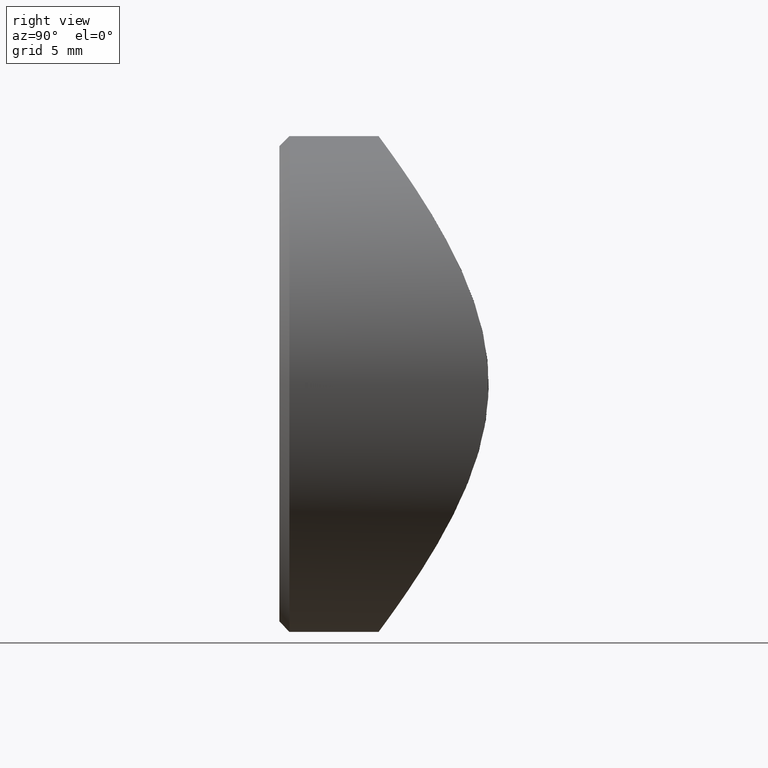
[diagram: clean part render]
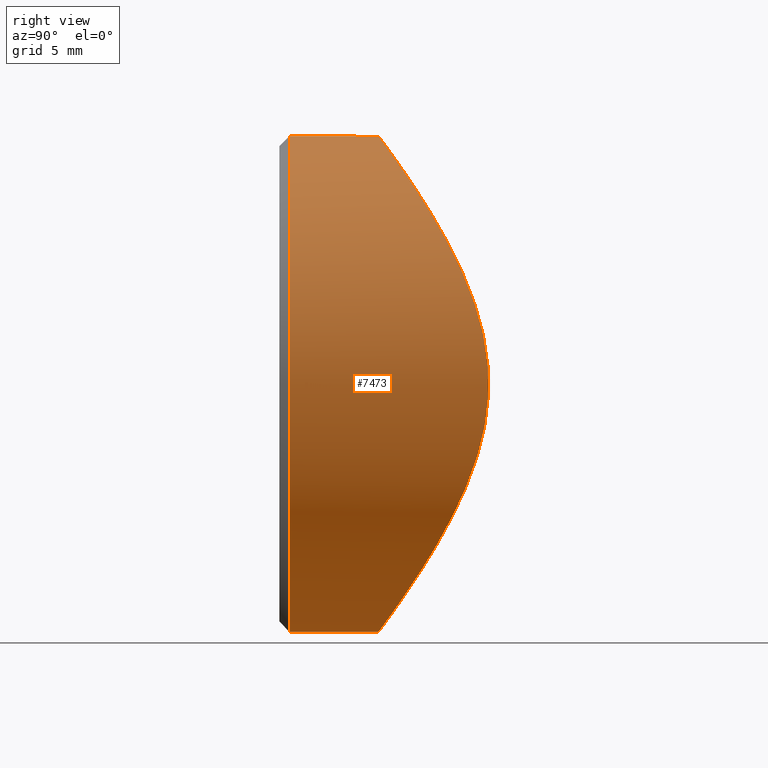
[diagram: same view with one face highlighted and labeled with its STEP entity id]
A machine part, right view. The second image highlights one B-rep face of the part: STEP entity #7473.
In plain terms, the highlighted cylindrical surface (bore or boss wall) has radius 12.5 mm, axis along (-0, -1, -0).
Its self-contained STEP definition (entity closure, byte-faithful):
#38 = AXIS2_PLACEMENT_3D ( 'NONE', #4873, #10586, #1114 ) ;
#98 = CARTESIAN_POINT ( 'NONE',  ( 7.725087596276202007, 6.857375210743176908, -9.859955546532111370 ) ) ;
#142 = CARTESIAN_POINT ( 'NONE',  ( -3.794707603699265519E-16, 5.000000000000002665, -12.50000000000000355 ) ) ;
#190 = CARTESIAN_POINT ( 'NONE',  ( -4.534034423792015822, 5.616592310495697404, 11.65607387355182212 ) ) ;
#508 = CARTESIAN_POINT ( 'NONE',  ( -0.8636332209585083630, 5.016786534777216033, -12.47739737055597686 ) ) ;
#551 = CARTESIAN_POINT ( 'NONE',  ( -3.794707603699265519E-16, 5.000000000000002665, -12.50000000000000355 ) ) ;
#596 = CARTESIAN_POINT ( 'NONE',  ( -9.913336281726111920, 8.221333207590474146, 7.624286059533287307 ) ) ;
#635 = CARTESIAN_POINT ( 'NONE',  ( -12.41251668152268905, 10.45200333766280920, -1.702225936348462865 ) ) ;
#669 = CARTESIAN_POINT ( 'NONE',  ( -8.608763914812016083, 7.361479320957146300, -9.071559621878899193 ) ) ;
#972 = EDGE_LOOP ( 'NONE', ( #6215 ) ) ;
#1064 = CARTESIAN_POINT ( 'NONE',  ( 10.15209503105343281, 8.398827899570685318, -7.303255687103288984 ) ) ;
#1106 = CARTESIAN_POINT ( 'NONE',  ( 5.702415678347255934, 5.989605611720553391, 11.13103517131092524 ) ) ;
#1114 = DIRECTION ( 'NONE',  ( 0.000000000000000000, 0.000000000000000000, 1.000000000000000000 ) ) ;
#1146 = CARTESIAN_POINT ( 'NONE',  ( 6.760625651690383542, 6.411496255424631308, 10.52154059065050262 ) ) ;
#1474 = CARTESIAN_POINT ( 'NONE',  ( -8.316948715918014656, 7.191485976901522470, -9.340102047202101687 ) ) ;
#1479 = EDGE_LOOP ( 'NONE', ( #5373 ) ) ;
#1508 = CARTESIAN_POINT ( 'NONE',  ( -11.65515748268190599, 9.679308167460490608, 4.535070984888439405 ) ) ;
#1543 = CARTESIAN_POINT ( 'NONE',  ( -4.561892468143614821, 5.624459840649056908, -11.64511404937758599 ) ) ;
#1566 = AXIS2_PLACEMENT_3D ( 'NONE', #11129, #9256, #4627 ) ;
#1575 = CARTESIAN_POINT ( 'NONE',  ( -1.710710483963290507, 5.081684415357668350, -12.38970448086469744 ) ) ;
#1613 = CARTESIAN_POINT ( 'NONE',  ( -7.704468760255166693, 6.860509333842019331, -9.851411234823737928 ) ) ;
#1936 = CARTESIAN_POINT ( 'NONE',  ( 1.709900785693727165, 5.066159786283003008, -12.41121583812317297 ) ) ;
#2022 = CARTESIAN_POINT ( 'NONE',  ( 12.49940800475359026, 10.55011945727633638, -0.4431015120750765313 ) ) ;
#2067 = CARTESIAN_POINT ( 'NONE',  ( 5.333944091556106493, 5.861640268224943995, 11.31230488373124388 ) ) ;
#2112 = CARTESIAN_POINT ( 'NONE',  ( 4.201071322070166758, 5.512989083530328571, 11.80160180501883360 ) ) ;
#2299 = FACE_OUTER_BOUND ( 'NONE', #972, .T. ) ;
#2411 = EDGE_CURVE ( 'NONE', #7715, #7715, #5969, .T. ) ;
#2427 = CARTESIAN_POINT ( 'NONE',  ( -12.49404709278494785, 10.54417970573474506, 0.4419573438402809029 ) ) ;
#2463 = CARTESIAN_POINT ( 'NONE',  ( -11.19164272665530646, 9.246236715532639039, -5.625340578761621302 ) ) ;
#2567 = CARTESIAN_POINT ( 'NONE',  ( -10.14981759695986874, 8.397065247982311575, 7.306580317500587896 ) ) ;
#2834 = CARTESIAN_POINT ( 'NONE',  ( 12.32849113551055886, 10.36322505742986877, 2.105957164664732151 ) ) ;
#2839 = CARTESIAN_POINT ( 'NONE',  ( 0.000000000000000000, 0.4999999999999952260, 12.50000000000000000 ) ) ;
#2875 = CARTESIAN_POINT ( 'NONE',  ( 9.918910832310835701, 8.225381941180074818, -7.617067061706761955 ) ) ;
#2959 = CARTESIAN_POINT ( 'NONE',  ( 12.05501788564150090, 10.07591272140713201, 3.331002727478517222 ) ) ;
#3002 = CARTESIAN_POINT ( 'NONE',  ( 0.8862944527719824883, 5.001706842052980662, 12.49769917332690028 ) ) ;
#3042 = CARTESIAN_POINT ( 'NONE',  ( -3.338531084585762532, 5.328949253520355533, 12.05321773628484294 ) ) ;
#3160 = CYLINDRICAL_SURFACE ( 'NONE', #1566, 12.50000000000000000 ) ;
#3360 = CARTESIAN_POINT ( 'NONE',  ( -12.15502326599365190, 10.17980253063021223, -2.947023121730977469 ) ) ;
#3504 = CARTESIAN_POINT ( 'NONE',  ( -12.38807136735368530, 10.42798203802804125, 1.722643117104000643 ) ) ;
#3702 = CARTESIAN_POINT ( 'NONE',  ( 0.000000000000000000, 5.000000000000000888, -12.50000000000000000 ) ) ;
#3740 = CARTESIAN_POINT ( 'NONE',  ( 3.359470735374358252, 5.333152633049887292, -12.04746228219888593 ) ) ;
#3780 = CARTESIAN_POINT ( 'NONE',  ( 12.15913050264130746, 10.18409936269996940, 2.929555371981024781 ) ) ;
#3825 = CARTESIAN_POINT ( 'NONE',  ( 12.38761164070138321, 10.42747986706152297, -1.726914567639154630 ) ) ;
#3864 = CARTESIAN_POINT ( 'NONE',  ( 2.949310682857493315, 5.254859001800931573, -12.15440563398029283 ) ) ;
#3908 = CARTESIAN_POINT ( 'NONE',  ( 12.39374998103031622, 10.43415610254688985, 1.681148217496150732 ) ) ;
#3947 = CARTESIAN_POINT ( 'NONE',  ( 8.346359077379165825, 7.197970252377378308, 9.338307349549639369 ) ) ;
#4310 = CARTESIAN_POINT ( 'NONE',  ( -0.4325281405136495172, 5.000000000000002665, -12.50000000000000355 ) ) ;
#4387 = CARTESIAN_POINT ( 'NONE',  ( -6.386089779192299254, 6.239893742329651438, 10.77567517134109742 ) ) ;
#4425 = CARTESIAN_POINT ( 'NONE',  ( -11.79600166072150280, 9.816397478828196910, 4.156171737159097823 ) ) ;
#4467 = CARTESIAN_POINT ( 'NONE',  ( -5.676436023841302969, 5.964958371272968130, 11.16755028081584200 ) ) ;
#4627 = DIRECTION ( 'NONE',  ( 0.000000000000000000, 0.000000000000000000, -1.000000000000000000 ) ) ;
#4694 = CARTESIAN_POINT ( 'NONE',  ( 10.80637188597060927, 8.909710813056152645, -6.331084841090776294 ) ) ;
#4731 = CARTESIAN_POINT ( 'NONE',  ( 10.16616520457220574, 8.409465877212438656, 7.283675092912237581 ) ) ;
#4862 = CARTESIAN_POINT ( 'NONE',  ( 6.730548925864030529, 6.398283905438035823, -10.54092674265327467 ) ) ;
#4873 = CARTESIAN_POINT ( 'NONE',  ( 0.000000000000000000, 0.4999999999999952260, 0.000000000000000000 ) ) ;
#4904 = CARTESIAN_POINT ( 'NONE',  ( -4.138822897866138106, 5.511057176469463137, 11.80237233021971122 ) ) ;
#5292 = CARTESIAN_POINT ( 'NONE',  ( -2.954705641635357871, 5.255823458859257613, -12.15308928381742959 ) ) ;
#5333 = CARTESIAN_POINT ( 'NONE',  ( -7.382638748798954431, 6.698996399061609708, 10.09497273999650702 ) ) ;
#5372 = CARTESIAN_POINT ( 'NONE',  ( -9.415611300531685046, 7.872837962933485478, 8.231053273395870562 ) ) ;
#5373 = ORIENTED_EDGE ( 'NONE', *, *, #2411, .T. ) ;
#5416 = CARTESIAN_POINT ( 'NONE',  ( -2.128847978376533501, 5.129803027708679686, -12.32460428793201501 ) ) ;
#5494 = VERTEX_POINT ( 'NONE', #2839 ) ;
#5638 = CARTESIAN_POINT ( 'NONE',  ( 5.307264070331348726, 5.852767815495488080, -11.32483359410820967 ) ) ;
#5727 = CARTESIAN_POINT ( 'NONE',  ( 9.173058474145415531, 7.712008819377808244, 8.500524791488439647 ) ) ;
#5765 = CARTESIAN_POINT ( 'NONE',  ( 6.384361518290241122, 6.251688766562865318, -10.75428117890123225 ) ) ;
#5812 = CARTESIAN_POINT ( 'NONE',  ( 11.18287452319160380, 9.238413557585971603, -5.642728639872041541 ) ) ;
#5855 = CARTESIAN_POINT ( 'NONE',  ( -0.3935469930541703465, 4.999195247331875258, 12.50108480833786651 ) ) ;
#5969 = B_SPLINE_CURVE_WITH_KNOTS ( 'NONE', 3,
 ( #142, #9520, #1936, #3864, #3740, #11393, #11268, #5638, #10462, #5765, #4862, #98, #8511, #9475, #10327, #2875, #1064, #4694, #5812, #7660, #12199, #11436, #8471, #7539, #3825, #6680, #2022, #10375, #10416, #3908, #2834, #3780, #2959, #9560, #10499, #6758, #9437, #4731, #11308, #11346, #5727, #3947, #9608, #1146, #6799, #1106, #2067, #2112, #7707, #8653, #3002, #5855, #11481, #7748, #8694, #10546, #3042, #4904, #190, #4467, #4387, #5333, #8207, #10000, #8063, #10075, #5372, #596, #2567, #7271, #9179, #1508, #4425, #7111, #9025, #11944, #3504, #8138, #7230, #2427, #11908, #6289, #635, #3360, #10037, #9956, #11835, #2463, #6324, #11042, #11873, #669, #1474, #1613, #11007, #10932, #9142, #1543, #8174, #10112, #5292, #5416, #1575, #508, #4310, #551 ),
 .UNSPECIFIED., .T., .F.,
 ( 4, 2, 2, 2, 2, 2, 2, 2, 2, 2, 2, 2, 2, 2, 2, 2, 2, 2, 2, 2, 2, 2, 2, 2, 2, 2, 2, 2, 2, 2, 2, 2, 2, 2, 2, 2, 2, 2, 2, 2, 2, 2, 2, 2, 2, 2, 2, 2, 2, 2, 2, 2, 4 ),
 ( 0.000000000000000000, 0.002552980576159042617, 0.003829470864238562842, 0.005105961152318081765, 0.006382451440397601122, 0.007658941728477119612, 0.01021192230463616006, 0.01148841259271568029, 0.01276490288079519878, 0.01531788345695423922, 0.01659437374503376292, 0.01787086403311328314, 0.01914735432119280337, 0.02042384460927232706, 0.02170033489735184382, 0.02297682518543136751, 0.02425331547351088773, 0.02552980576159040796, 0.02808278633774945188, 0.02935927662582896863, 0.03063576691390848192, 0.03318874749006752584, 0.03446523777814704953, 0.03574172806622656628, 0.03829470864238560673, 0.04084768921854465412, 0.04212417950662417088, 0.04340066979470368763, 0.04467716008278321133, 0.04595365037086273502, 0.04850663094702177547, 0.04978312123510129222, 0.05105961152318081592, 0.05233610181126033961, 0.05361259209933985637, 0.05616557267549890375, 0.05744206296357842051, 0.05871855325165794420, 0.05999504353973746096, 0.06063328868377722281, 0.06127153382781698465, 0.06382451440397604592, 0.06510100469205556961, 0.06637749498013509331, 0.06893047555629414069, 0.07148345613245318808, 0.07275994642053269790, 0.07403643670861222159, 0.07658941728477126898, 0.07786590757285079267, 0.07914239786093030249, 0.08041888814900982618, 0.08169537843708934988 ),
 .UNSPECIFIED. ) ;
#6215 = ORIENTED_EDGE ( 'NONE', *, *, #7156, .T. ) ;
#6289 = CARTESIAN_POINT ( 'NONE',  ( -12.50054828447288813, 10.55138091347944140, -0.8562946877523991418 ) ) ;
#6324 = CARTESIAN_POINT ( 'NONE',  ( -10.80643849006685642, 8.909656422256221120, -6.331389163156086575 ) ) ;
#6680 = CARTESIAN_POINT ( 'NONE',  ( 12.47704102393364067, 10.52523352844297122, -0.8709783991820276849 ) ) ;
#6758 = CARTESIAN_POINT ( 'NONE',  ( 11.19541113013799816, 9.249535606679128108, 5.618437667368847421 ) ) ;
#6799 = CARTESIAN_POINT ( 'NONE',  ( 6.418289861271227359, 6.265545887740251452, 10.73419972845318426 ) ) ;
#7111 = CARTESIAN_POINT ( 'NONE',  ( -12.04386476068136780, 10.06447640349762551, 3.371163050776679881 ) ) ;
#7156 = EDGE_CURVE ( 'NONE', #5494, #5494, #10397, .T. ) ;
#7230 = CARTESIAN_POINT ( 'NONE',  ( -12.47135625874014764, 10.51915456152846673, 0.8728184909163256844 ) ) ;
#7271 = CARTESIAN_POINT ( 'NONE',  ( -10.80916643883108641, 8.911861661272373780, 6.327050944019698697 ) ) ;
#7473 = ADVANCED_FACE ( 'NONE', ( #2299, #9514 ), #3160, .T. ) ;
#7539 = CARTESIAN_POINT ( 'NONE',  ( 12.32171943010986048, 10.35595190368455754, -2.144704867840639739 ) ) ;
#7660 = CARTESIAN_POINT ( 'NONE',  ( 11.65613356539895129, 9.680216760165276213, -4.532804604408831040 ) ) ;
#7707 = CARTESIAN_POINT ( 'NONE',  ( 3.406329399486695220, 5.326159724026612530, 12.05732280935469447 ) ) ;
#7715 = VERTEX_POINT ( 'NONE', #3702 ) ;
#7748 = CARTESIAN_POINT ( 'NONE',  ( -1.681670327208296900, 5.078608372228565315, 12.39386628287589787 ) ) ;
#8063 = CARTESIAN_POINT ( 'NONE',  ( -8.601666625683400014, 7.357270806964956833, 9.078266378976396211 ) ) ;
#8138 = CARTESIAN_POINT ( 'NONE',  ( -12.45451491416239342, 10.50061081447679712, 1.086513290666520914 ) ) ;
#8174 = CARTESIAN_POINT ( 'NONE',  ( -4.167544218299445546, 5.518293250734573441, -11.79236184805642118 ) ) ;
#8207 = CARTESIAN_POINT ( 'NONE',  ( -7.703289577120546738, 6.859953521673319621, 9.852230508724872493 ) ) ;
#8471 = CARTESIAN_POINT ( 'NONE',  ( 12.15102610715198495, 10.17564880183612175, -2.962615943350923597 ) ) ;
#8511 = CARTESIAN_POINT ( 'NONE',  ( 8.328807637774536587, 7.187957922519476739, -9.353951093026466879 ) ) ;
#8653 = CARTESIAN_POINT ( 'NONE',  ( 1.731586466040706984, 5.067807480715986301, 12.40901775393269801 ) ) ;
#8694 = CARTESIAN_POINT ( 'NONE',  ( -2.103050648774579923, 5.126508452823334672, 12.32907154300034946 ) ) ;
#9025 = CARTESIAN_POINT ( 'NONE',  ( -12.15099301147320965, 10.17560719874020236, 2.963116243893664681 ) ) ;
#9142 = CARTESIAN_POINT ( 'NONE',  ( -5.696601836064247415, 5.972427989903097867, -11.15692179667027339 ) ) ;
#9179 = CARTESIAN_POINT ( 'NONE',  ( -11.18515591272512921, 9.240538087488818775, 5.637423732912249186 ) ) ;
#9256 = DIRECTION ( 'NONE',  ( -0.000000000000000000, -1.000000000000000000, -0.000000000000000000 ) ) ;
#9437 = CARTESIAN_POINT ( 'NONE',  ( 10.81909761105386458, 8.920378320601397348, 6.309396023832007039 ) ) ;
#9475 = CARTESIAN_POINT ( 'NONE',  ( 9.156916746094442061, 7.701541449956099683, -8.517906734318049899 ) ) ;
#9514 = FACE_OUTER_BOUND ( 'NONE', #1479, .T. ) ;
#9520 = CARTESIAN_POINT ( 'NONE',  ( 0.8650562810272981462, 5.000000000000000888, -12.50000000000000000 ) ) ;
#9560 = CARTESIAN_POINT ( 'NONE',  ( 11.81007909461817817, 9.830240466385300024, 4.115952766063815105 ) ) ;
#9608 = CARTESIAN_POINT ( 'NONE',  ( 7.745514045367439593, 6.868233065914329138, 9.843399544111576915 ) ) ;
#9956 = CARTESIAN_POINT ( 'NONE',  ( -11.80363150583910503, 9.823901913046761081, -4.134327354336587490 ) ) ;
#10000 = CARTESIAN_POINT ( 'NONE',  ( -8.312020225818031349, 7.188742090224305770, 9.344379919053761085 ) ) ;
#10037 = CARTESIAN_POINT ( 'NONE',  ( -12.04936401744532937, 10.07011975027965001, -3.351299176968092652 ) ) ;
#10075 = CARTESIAN_POINT ( 'NONE',  ( -9.153464094591219791, 7.699312268618356825, 8.521601038307187181 ) ) ;
#10112 = CARTESIAN_POINT ( 'NONE',  ( -3.362424914157018385, 5.333730177423861463, -12.04667263038362179 ) ) ;
#10327 = CARTESIAN_POINT ( 'NONE',  ( 9.420742977788826522, 7.876288571231414792, -8.225211515110952831 ) ) ;
#10375 = CARTESIAN_POINT ( 'NONE',  ( 12.50056880043485386, 10.55140360864599991, 0.4090465559027094966 ) ) ;
#10397 = CIRCLE ( 'NONE', #38, 12.50000000000000000 ) ;
#10416 = CARTESIAN_POINT ( 'NONE',  ( 12.47942030275058123, 10.52787125180945260, 0.8338865802829181773 ) ) ;
#10462 = CARTESIAN_POINT ( 'NONE',  ( 5.673483084413013522, 5.979304519893406500, -11.14568191552109155 ) ) ;
#10499 = CARTESIAN_POINT ( 'NONE',  ( 11.66840168895986452, 9.691977531270971724, 4.501324257794622419 ) ) ;
#10546 = CARTESIAN_POINT ( 'NONE',  ( -2.931482682952398555, 5.251674757995892229, 12.15875143356761434 ) ) ;
#10586 = DIRECTION ( 'NONE',  ( -0.000000000000000000, 1.000000000000000000, -0.000000000000000000 ) ) ;
#10932 = CARTESIAN_POINT ( 'NONE',  ( -6.400177161983100049, 6.245988225559218954, -10.76676231501228465 ) ) ;
#11007 = CARTESIAN_POINT ( 'NONE',  ( -7.387040474167372750, 6.701225434926187496, -10.09160505797753338 ) ) ;
#11042 = CARTESIAN_POINT ( 'NONE',  ( -9.929920225423078506, 8.225452702332207267, -7.632973594324992561 ) ) ;
#11129 = CARTESIAN_POINT ( 'NONE',  ( 0.000000000000000000, 12.00000000000000000, 0.000000000000000000 ) ) ;
#11268 = CARTESIAN_POINT ( 'NONE',  ( 4.551914136313043535, 5.621673925730649835, -11.64899075208257884 ) ) ;
#11308 = CARTESIAN_POINT ( 'NONE',  ( 9.933601834075018289, 8.236108023750972507, 7.597874980169982528 ) ) ;
#11346 = CARTESIAN_POINT ( 'NONE',  ( 9.437200314901742715, 7.887416057357630628, 8.206302445599357398 ) ) ;
#11393 = CARTESIAN_POINT ( 'NONE',  ( 4.162791216406916739, 5.517104976350059253, -11.79400527180851554 ) ) ;
#11436 = CARTESIAN_POINT ( 'NONE',  ( 12.04621049085036866, 10.06688127290639301, -3.362735198399096070 ) ) ;
#11481 = CARTESIAN_POINT ( 'NONE',  ( -0.8236043445746765723, 5.014642323220681597, 12.48028895542161365 ) ) ;
#11835 = CARTESIAN_POINT ( 'NONE',  ( -11.66325432306218168, 9.687052061339437969, -4.514457828201623890 ) ) ;
#11873 = CARTESIAN_POINT ( 'NONE',  ( -9.436904531623612868, 7.875397204460178990, -8.234735777067424323 ) ) ;
#11908 = CARTESIAN_POINT ( 'NONE',  ( -12.49985975548678141, 10.55061921451745199, 0.2240320143561972399 ) ) ;
#11944 = CARTESIAN_POINT ( 'NONE',  ( -12.32260250821294711, 10.35689137493422507, 2.140130011069715898 ) ) ;
#12199 = CARTESIAN_POINT ( 'NONE',  ( 11.79909287994842870, 9.819435535395363956, -4.147358486407480171 ) ) ;